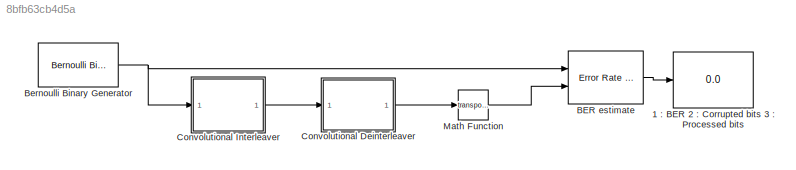
MODEL slx_8bfb63cb4d5a
KIND model
CONFIG AbsTol = auto
CONFIG EnableMultiTasking = off
CONFIG FixedStep = auto
CONFIG MaxStep = auto
CONFIG MinStep = auto
CONFIG RelTol = 1e-3
CONFIG SampleTimeConstraint = Unconstrained
CONFIG SolverName = VariableStepAuto
CONFIG StartTime = 0.0
CONFIG StopTime = 0.1
BLOCK [Display] 1 : BER 2 : Corrupted bits 3 : Processed bits
  Decimation = 1
  Ports = [1]
BLOCK [Reference] BER estimate  REF=commsink2/Error Rate
Calculation
  Ports = [2, 1]
  SourceBlock = commsink2/Error Rate\nCalculation
  SourceProductBaseCode = CM
  SourceType = Error Rate Calculation
BLOCK [Reference] Bernoulli Binary Generator  REF=commrandsrc3/Bernoulli Binary
Generator
  Ports = [0, 1]
  SourceBlock = commrandsrc3/Bernoulli Binary\nGenerator
  SourceProductBaseCode = CM
  SourceType = Bernoulli Binary Generator
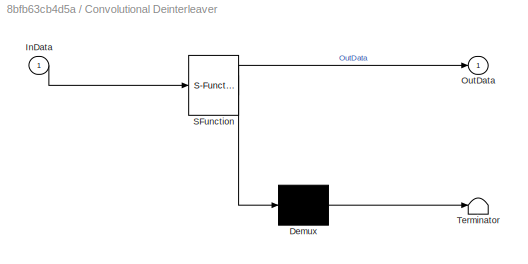
BLOCK [SubSystem] Convolutional Deinterleaver
  ErrorFcn = Stateflow.Translate.translate
  PermitHierarchicalResolution = ExplicitOnly
  Ports = [1, 1]
  RequestExecContextInheritance = off
  SFBlockType = MATLAB Function
  ShowPortLabels = none
  TreatAsAtomicUnit = on
BLOCK [Demux] Convolutional Deinterleaver/ Demux 
  Outputs = 1
  Ports = [1, 1]
BLOCK [S-Function] Convolutional Deinterleaver/ SFunction 
  EnableBusSupport = on
  FunctionName = sf_sfun
  Parameters = I,M
  PortCounts = [1 2]
  Ports = [1, 2]
  SFcnIsStateOwnerBlock = off
  SFunctionDeploymentMode = off
  Tag = Stateflow S-Function 1
BLOCK [Terminator] Convolutional Deinterleaver/ Terminator 
BLOCK [Inport] Convolutional Deinterleaver/InData
BLOCK [Outport] Convolutional Deinterleaver/OutData
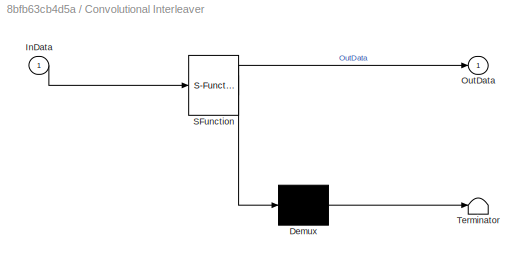
BLOCK [SubSystem] Convolutional Interleaver
  ErrorFcn = Stateflow.Translate.translate
  PermitHierarchicalResolution = ExplicitOnly
  Ports = [1, 1]
  RequestExecContextInheritance = off
  SFBlockType = MATLAB Function
  ShowPortLabels = none
  TreatAsAtomicUnit = on
BLOCK [Demux] Convolutional Interleaver/ Demux 
  Outputs = 1
  Ports = [1, 1]
BLOCK [S-Function] Convolutional Interleaver/ SFunction 
  EnableBusSupport = on
  FunctionName = sf_sfun
  Parameters = I,M
  PortCounts = [1 2]
  Ports = [1, 2]
  SFcnIsStateOwnerBlock = off
  SFunctionDeploymentMode = off
  Tag = Stateflow S-Function 3
BLOCK [Terminator] Convolutional Interleaver/ Terminator 
BLOCK [Inport] Convolutional Interleaver/InData
BLOCK [Outport] Convolutional Interleaver/OutData
BLOCK [Math] Math Function
  Operator = transpose
  Ports = [1, 1]
LINE BER estimate:1 -> 1 : BER 2 : Corrupted bits 3 : Processed bits:1
NET Bernoulli Binary Generator:1 -> BER estimate:1, Convolutional Interleaver:1
LINE Convolutional Deinterleaver:1 -> Math Function:1
LINE Convolutional Interleaver:1 -> Convolutional Deinterleaver:1
LINE Math Function:1 -> BER estimate:2
note: NET lines group one-source signal fan-out (src -> all destinations, sorted); 1:1 wires keep LINE
CHART Convolutional
Deinterleaver states=1 transitions=1
  STATE_LABEL 'eML_blk_kernel()'
  STATE_LABEL 'SCRIPT:\n\n% >> Function for implementing a convolutional deinterleaver. It requires as input the data\n%    vector and the number of delay lines (I) and the number of delay cells per block (M). \nfunction OutData   = CnvDeintrlv( InData, I, M)\n    Len = length(InData);                                                           % overall I/O buffers length\n    OutData = uint8(zeros(1,Len));\n    ShReg =...<+2129ch>'
CHART Convolutional
Interleaver states=1 transitions=1
  STATE_LABEL 'eML_blk_kernel()'
  STATE_LABEL 'SCRIPT:\n\n% >> Function for implementing a convolutional interleaver. It requires as the data vector\n%    and the number of delay lines (I) and the number of delay cells per block (M). \nfunction OutData = CnvIntrlv( InData, M,  I)\n    Len = length(InData);                                                           % overall I/O buffers length\n    OutData = uint8(zeros(1,Len));\n    ShReg = NaN(I-1,M*...<+1963ch>'
CHART  states=0 transitions=0
CHART  states=0 transitions=0
